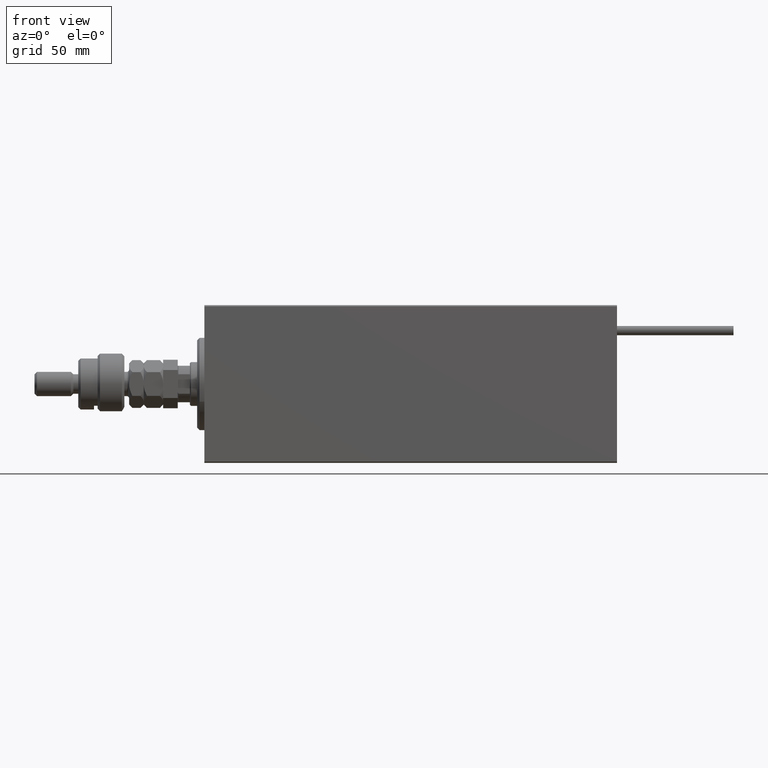
[diagram: clean part render]
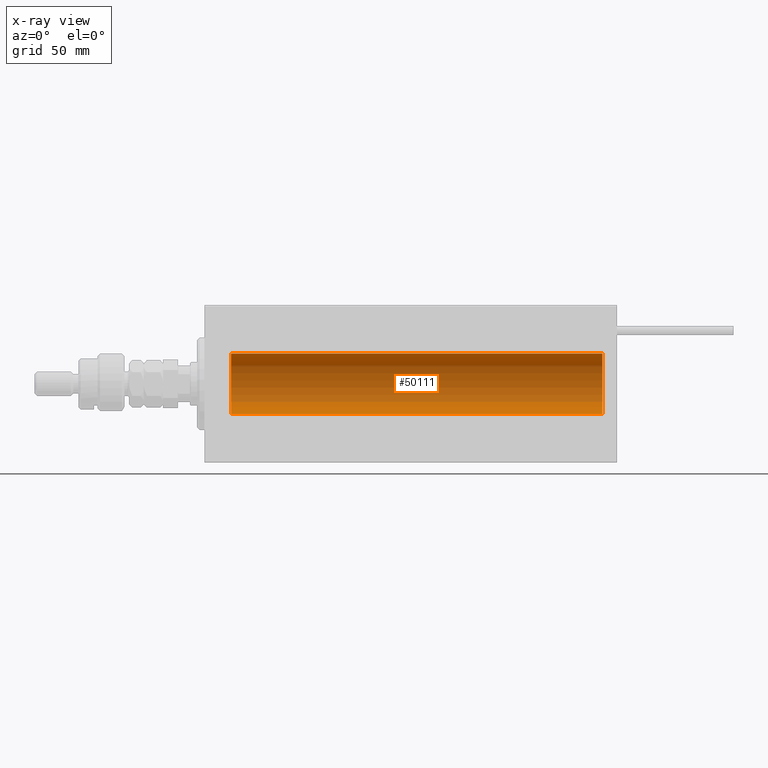
[diagram: x-ray — body ghosted, one internal face saturated and labeled with its STEP entity id]
A machine part, front view, then the same camera in x-ray: the body is ghosted and one INTERNAL B-rep face — a face not visible from any outside direction — is saturated and labeled: STEP entity #50111.
In plain terms, the highlighted cylindrical surface (edge-blend (fillet) strip) has radius 12.5 mm, axis along (-1, -0, -0).
Its self-contained STEP definition (entity closure, byte-faithful):
#1615 = CARTESIAN_POINT ( 'NONE',  ( 11.00000000000001066, 1.530808498934191521E-15, -12.50000000000000000 ) ) ;
#2352 = DIRECTION ( 'NONE',  ( -1.000000000000000000, -0.000000000000000000, -0.000000000000000000 ) ) ;
#3352 = EDGE_CURVE ( 'NONE', #24217, #13960, #32172, .T. ) ;
#4255 = DIRECTION ( 'NONE',  ( 0.000000000000000000, 0.000000000000000000, 1.000000000000000000 ) ) ;
#6562 = CARTESIAN_POINT ( 'NONE',  ( 164.0000000000000000, 0.000000000000000000, 12.50000000000000000 ) ) ;
#8806 = DIRECTION ( 'NONE',  ( 0.000000000000000000, 0.000000000000000000, 1.000000000000000000 ) ) ;
#9156 = CARTESIAN_POINT ( 'NONE',  ( 164.0000000000000000, 1.530808498934191521E-15, -12.50000000000000000 ) ) ;
#12663 = EDGE_LOOP ( 'NONE', ( #38286, #23157, #46672, #15680 ) ) ;
#13960 = VERTEX_POINT ( 'NONE', #1615 ) ;
#14865 = DIRECTION ( 'NONE',  ( -1.000000000000000000, -0.000000000000000000, -0.000000000000000000 ) ) ;
#15680 = ORIENTED_EDGE ( 'NONE', *, *, #3352, .T. ) ;
#16304 = AXIS2_PLACEMENT_3D ( 'NONE', #16581, #17102, #8806 ) ;
#16581 = CARTESIAN_POINT ( 'NONE',  ( 164.0000000000000000, 0.000000000000000000, 0.000000000000000000 ) ) ;
#16733 = AXIS2_PLACEMENT_3D ( 'NONE', #32421, #20079, #4255 ) ;
#17102 = DIRECTION ( 'NONE',  ( -1.000000000000000000, 0.000000000000000000, 0.000000000000000000 ) ) ;
#17607 = CARTESIAN_POINT ( 'NONE',  ( 164.0000000000000000, 0.000000000000000000, 12.50000000000000000 ) ) ;
#20079 = DIRECTION ( 'NONE',  ( -1.000000000000000000, 0.000000000000000000, 0.000000000000000000 ) ) ;
#20580 = CIRCLE ( 'NONE', #16304, 12.50000000000000000 ) ;
#21481 = DIRECTION ( 'NONE',  ( -1.000000000000000000, -0.000000000000000000, -0.000000000000000000 ) ) ;
#23157 = ORIENTED_EDGE ( 'NONE', *, *, #33288, .F. ) ;
#23982 = EDGE_CURVE ( 'NONE', #35985, #13960, #45853, .T. ) ;
#24217 = VERTEX_POINT ( 'NONE', #51447 ) ;
#24432 = CARTESIAN_POINT ( 'NONE',  ( 164.0000000000000000, 1.530808498934191521E-15, -12.50000000000000000 ) ) ;
#27294 = DIRECTION ( 'NONE',  ( 0.000000000000000000, 0.000000000000000000, 1.000000000000000000 ) ) ;
#32105 = CARTESIAN_POINT ( 'NONE',  ( 164.0000000000000000, 0.000000000000000000, 0.000000000000000000 ) ) ;
#32172 = CIRCLE ( 'NONE', #16733, 12.50000000000000000 ) ;
#32421 = CARTESIAN_POINT ( 'NONE',  ( 11.00000000000001066, 0.000000000000000000, 0.000000000000000000 ) ) ;
#33288 = EDGE_CURVE ( 'NONE', #45850, #35985, #20580, .T. ) ;
#35985 = VERTEX_POINT ( 'NONE', #24432 ) ;
#36103 = FACE_OUTER_BOUND ( 'NONE', #12663, .T. ) ;
#38286 = ORIENTED_EDGE ( 'NONE', *, *, #23982, .F. ) ;
#38338 = AXIS2_PLACEMENT_3D ( 'NONE', #32105, #2352, #27294 ) ;
#39821 = VECTOR ( 'NONE', #14865, 1000.000000000000000 ) ;
#43258 = LINE ( 'NONE', #6562, #39821 ) ;
#45850 = VERTEX_POINT ( 'NONE', #17607 ) ;
#45853 = LINE ( 'NONE', #9156, #50743 ) ;
#46672 = ORIENTED_EDGE ( 'NONE', *, *, #47231, .T. ) ;
#47231 = EDGE_CURVE ( 'NONE', #45850, #24217, #43258, .T. ) ;
#50111 = ADVANCED_FACE ( 'NONE', ( #36103 ), #52426, .F. ) ;
#50743 = VECTOR ( 'NONE', #21481, 1000.000000000000000 ) ;
#51447 = CARTESIAN_POINT ( 'NONE',  ( 11.00000000000001066, 0.000000000000000000, 12.50000000000000000 ) ) ;
#52426 = CYLINDRICAL_SURFACE ( 'NONE', #38338, 12.50000000000000000 ) ;